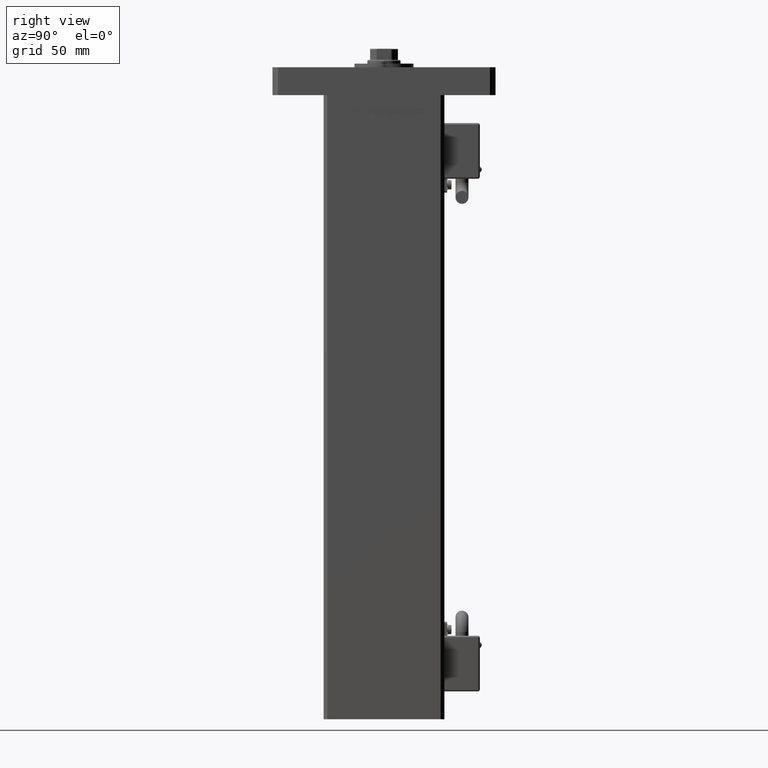
[diagram: clean part render]
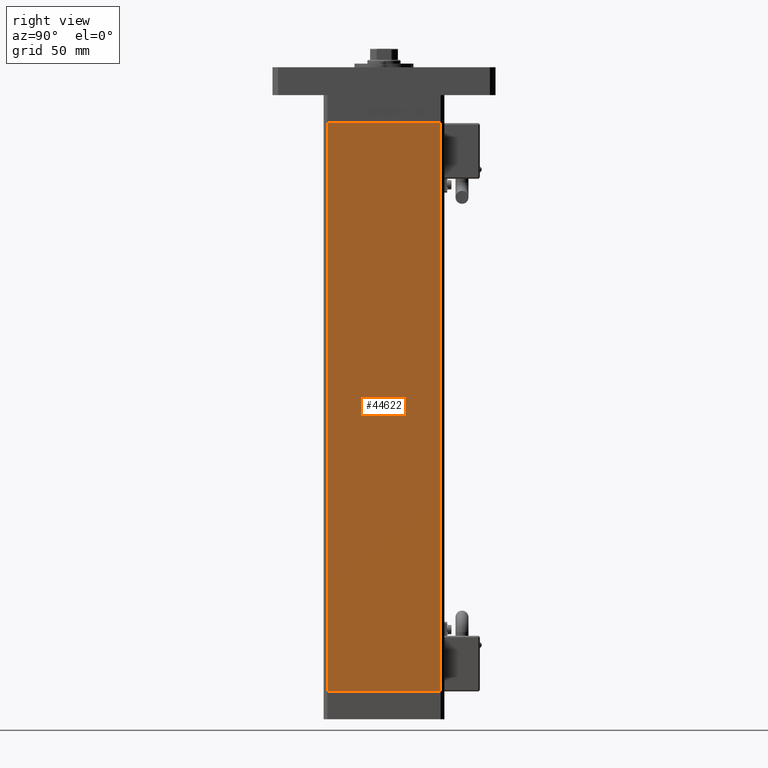
[diagram: same view with one face highlighted and labeled with its STEP entity id]
A machine part, right view. The second image highlights one B-rep face of the part: STEP entity #44622.
In plain terms, the highlighted planar face has unit normal (1, -0, 0).
Its self-contained STEP definition (entity closure, byte-faithful):
#1594 = DIRECTION ( 'NONE',  ( 1.000000000000000000, -2.275047181608927644E-16, 0.000000000000000000 ) ) ;
#11814 = LINE ( 'NONE', #25262, #14214 ) ;
#11869 = LINE ( 'NONE', #29324, #12237 ) ;
#12237 = VECTOR ( 'NONE', #25037, 1000.000000000000000 ) ;
#14214 = VECTOR ( 'NONE', #54762, 1000.000000000000000 ) ;
#14762 = DIRECTION ( 'NONE',  ( -2.275047181608927644E-16, -1.000000000000000000, 0.000000000000000000 ) ) ;
#15047 = FACE_OUTER_BOUND ( 'NONE', #44967, .T. ) ;
#16624 = EDGE_CURVE ( 'NONE', #46581, #52974, #24821, .T. ) ;
#19065 = DIRECTION ( 'NONE',  ( 2.275047181608927644E-16, 1.000000000000000000, 0.000000000000000000 ) ) ;
#20337 = VECTOR ( 'NONE', #37994, 1000.000000000000000 ) ;
#20528 = CARTESIAN_POINT ( 'NONE',  ( 37.50000000000000711, 30.50000000000000000, 306.0000000000000000 ) ) ;
#20971 = VERTEX_POINT ( 'NONE', #42811 ) ;
#21165 = ORIENTED_EDGE ( 'NONE', *, *, #35931, .T. ) ;
#22212 = ORIENTED_EDGE ( 'NONE', *, *, #16624, .T. ) ;
#23644 = CARTESIAN_POINT ( 'NONE',  ( 37.50000000000000711, 30.50000000000000000, 306.0000000000000000 ) ) ;
#24445 = EDGE_CURVE ( 'NONE', #28090, #20971, #45386, .T. ) ;
#24469 = PLANE ( 'NONE',  #47436 ) ;
#24657 = ORIENTED_EDGE ( 'NONE', *, *, #53957, .F. ) ;
#24821 = LINE ( 'NONE', #20528, #20337 ) ;
#25037 = DIRECTION ( 'NONE',  ( -0.000000000000000000, -0.000000000000000000, -1.000000000000000000 ) ) ;
#25262 = CARTESIAN_POINT ( 'NONE',  ( 37.49999999999999289, -30.50000000000000000, 306.0000000000000000 ) ) ;
#27650 = VECTOR ( 'NONE', #14762, 1000.000000000000000 ) ;
#28090 = VERTEX_POINT ( 'NONE', #44271 ) ;
#29324 = CARTESIAN_POINT ( 'NONE',  ( 37.50000000000000711, 30.50000000000000000, 306.0000000000000000 ) ) ;
#35931 = EDGE_CURVE ( 'NONE', #52974, #20971, #11814, .T. ) ;
#37994 = DIRECTION ( 'NONE',  ( -2.275047181608927644E-16, -1.000000000000000000, 0.000000000000000000 ) ) ;
#40525 = CARTESIAN_POINT ( 'NONE',  ( 37.50000000000000711, 30.50000000000000000, 0.000000000000000000 ) ) ;
#42811 = CARTESIAN_POINT ( 'NONE',  ( 37.49999999999999289, -30.50000000000000000, 0.000000000000000000 ) ) ;
#44271 = CARTESIAN_POINT ( 'NONE',  ( 37.50000000000000711, 30.50000000000000000, 0.000000000000000000 ) ) ;
#44622 = ADVANCED_FACE ( 'NONE', ( #15047 ), #24469, .T. ) ;
#44967 = EDGE_LOOP ( 'NONE', ( #46193, #24657, #22212, #21165 ) ) ;
#45111 = CARTESIAN_POINT ( 'NONE',  ( 37.50000000000000711, 30.50000000000000000, 306.0000000000000000 ) ) ;
#45386 = LINE ( 'NONE', #40525, #27650 ) ;
#46193 = ORIENTED_EDGE ( 'NONE', *, *, #24445, .F. ) ;
#46581 = VERTEX_POINT ( 'NONE', #45111 ) ;
#47436 = AXIS2_PLACEMENT_3D ( 'NONE', #23644, #1594, #19065 ) ;
#52974 = VERTEX_POINT ( 'NONE', #56480 ) ;
#53957 = EDGE_CURVE ( 'NONE', #46581, #28090, #11869, .T. ) ;
#54762 = DIRECTION ( 'NONE',  ( -0.000000000000000000, -0.000000000000000000, -1.000000000000000000 ) ) ;
#56480 = CARTESIAN_POINT ( 'NONE',  ( 37.49999999999999289, -30.50000000000000000, 306.0000000000000000 ) ) ;